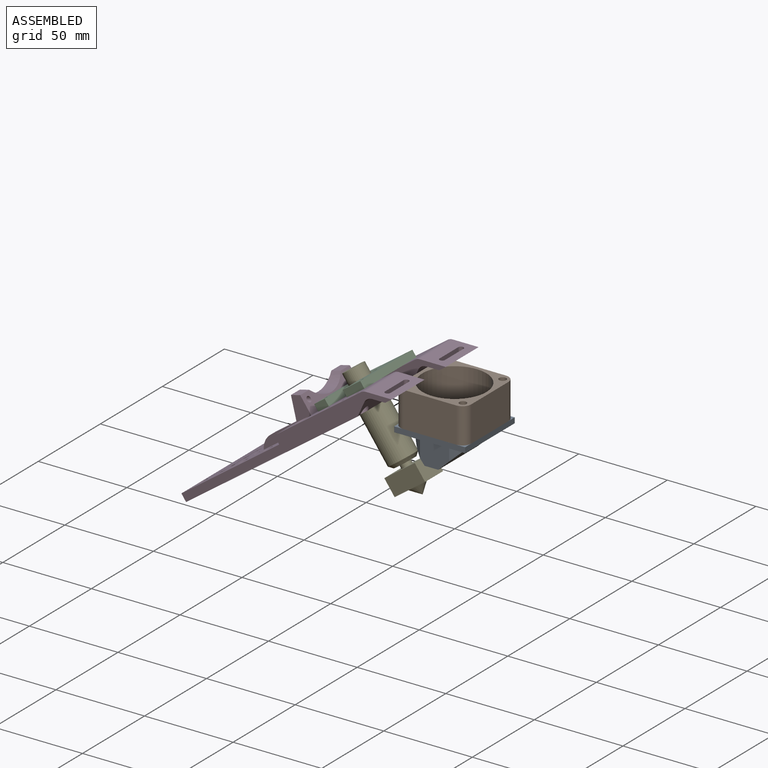
[diagram: assembled view]
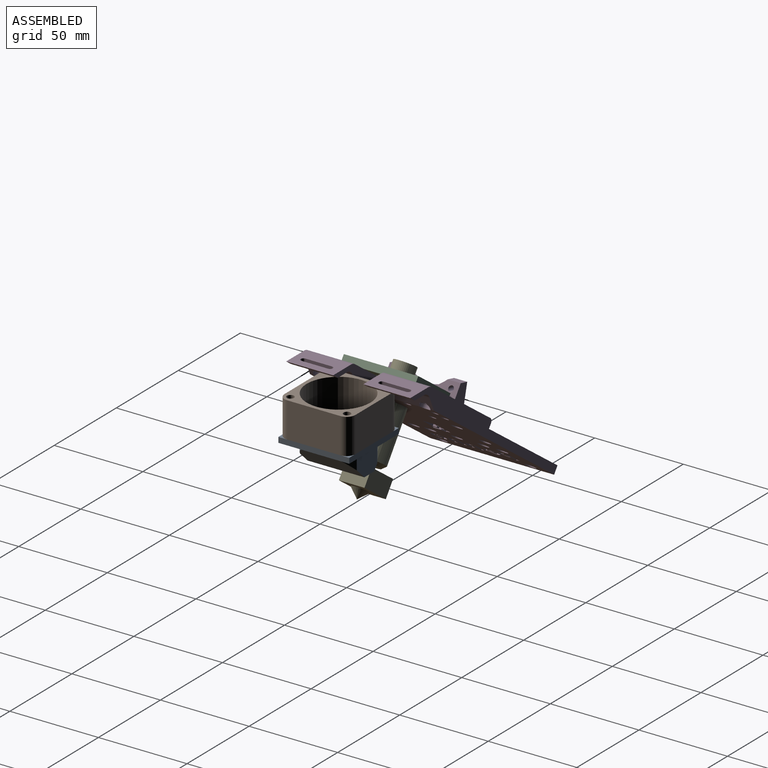
[diagram: assembled view, second angle]
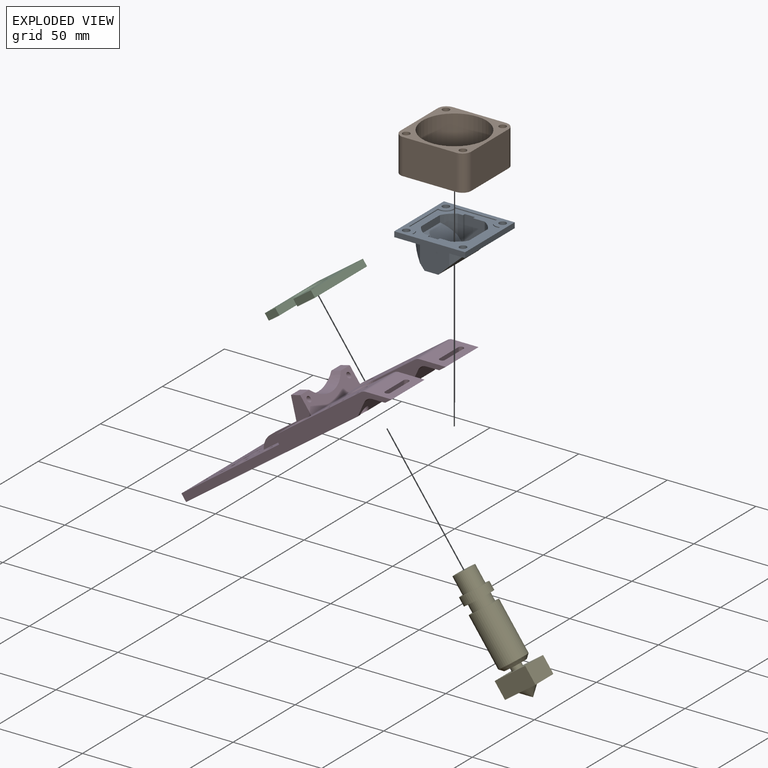
[diagram: exploded view]
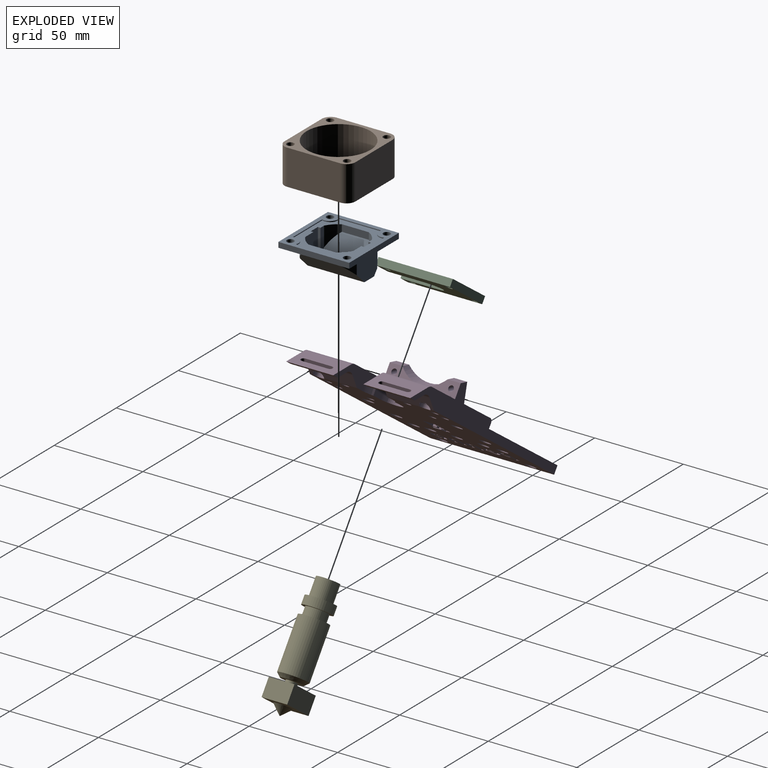
[diagram: exploded view, second angle]
ASSEMBLY  parts=5 mates=9
PART A: 46 faces, bbox 40x40x17.8 mm
  f0: plane 32x7.75mm, normal (0,0,1), area 75.5mm2, adj f6,f7,f8,f9,f42,f43,f44,f45
  f1: plane 14.6x2.94mm, normal (-1,0,0), area 37.6mm2, adj f3,f4,f29,f42
  f2: plane 14.6x2.94mm, normal (1,0,0), area 37.6mm2, adj f3,f4,f28,f42
  f3: plane 27x10.74mm, normal (0,-0.77,-0.63), area 330.6mm2, adj f1,f2,f28,f29,f30,f42
  f4: plane 35x35mm, normal (0,0,-1), area 409.7mm2, adj f1,f2,f25,f26,f28,f29,f30,f31
  f5: plane 40x40mm, normal (0,0,-1), area 450.3mm2, adj f17,f18,f19,f20,f21,f22,f23,f24
  f6: plane 16.49x14.82mm, normal (1,0,0), area 222.1mm2, adj f0,f8,f9,f11,f15,f16
  f7: plane 16.49x14.82mm, normal (-1,0,0), area 222.1mm2, adj f0,f8,f9,f10,f13,f16
  f8: plane 32x13.93mm, normal (0,-0.69,0.72), area 552.1mm2, adj f0,f6,f7,f13,f14,f15
  f9: plane 32x12.56mm, normal (0,0.77,0.63), area 445.3mm2, adj f0,f6,f7,f10,f11,f12
  f10: cylinder r=18mm len=11.7mm, axis (0,0,-1), area 72.3mm2, adj f7,f9,f12,f16
  f11: cylinder r=18mm len=11.7mm, axis (0,0,-1), area 72.3mm2, adj f6,f9,f12,f16
  f12: plane 16.49x2.26mm, normal (0,1,0), area 37.3mm2, adj f9,f10,f11,f16
  f13: cylinder r=18mm len=8.89mm, axis (0,0,-1), area 53.3mm2, adj f7,f8,f14,f16
  f14: plane 16.49x1.45mm, normal (0,-1,0), area 23.9mm2, adj f8,f13,f15,f16
  f15: cylinder r=18mm len=8.89mm, axis (0,0,-1), area 53.3mm2, adj f6,f8,f14,f16
  f16: plane 40x40mm, normal (0,0,1), area 620.8mm2, adj f6,f7,f10,f11,f12,f13,f14,f15
  f17: plane 40x3mm, normal (-1,0,0), area 120mm2, adj f5,f16,f18,f20
  f18: plane 40x3mm, normal (0,-1,0), area 120mm2, adj f5,f16,f17,f19
  f19: plane 40x3mm, normal (1,0,0), area 120mm2, adj f5,f16,f18,f20
  f20: plane 40x3mm, normal (0,1,0), area 120mm2, adj f5,f16,f17,f19
  f21: cylinder r=2mm len=4mm, axis (0,0,1), area 37.7mm2, adj f5,f16
  f22: cylinder r=2mm len=4mm, axis (0,0,1), area 37.7mm2, adj f5,f16
  f23: cylinder r=2mm len=4mm, axis (0,0,1), area 37.7mm2, adj f5,f16
  f24: cylinder r=2mm len=4mm, axis (0,0,1), area 37.7mm2, adj f5,f16
  f25: plane 14.82x6.55mm, normal (-1,0,0), area 76.4mm2, adj f4,f27,f33,f44
  f26: plane 14.82x6.55mm, normal (1,0,0), area 76.4mm2, adj f4,f27,f31,f44
  f27: plane 27x12.43mm, normal (0,0.69,-0.72), area 426.1mm2, adj f25,f26,f31,f32,f33,f44
  f28: cylinder r=15.5mm len=11.03mm, axis (0,0,-1), area 60mm2, adj f2,f3,f4,f30
  f29: cylinder r=15.5mm len=11.03mm, axis (0,0,-1), area 60mm2, adj f1,f3,f4,f30
  f30: plane 15.23x3.86mm, normal (0,-1,0), area 58.9mm2, adj f3,f4,f28,f29
  f31: cylinder r=15.5mm len=8.53mm, axis (0,0,-1), area 45.9mm2, adj f4,f26,f27,f32
  f32: plane 15.23x2.88mm, normal (0,1,0), area 43.9mm2, adj f4,f27,f31,f33
  f33: cylinder r=15.5mm len=8.53mm, axis (0,0,-1), area 45.9mm2, adj f4,f25,f27,f32
  f34: plane 23.51x0.5mm, normal (1,0,0), area 11.8mm2, adj f4,f5,f38,f41
  f35: plane 23.51x0.5mm, normal (0,1,0), area 11.8mm2, adj f4,f5,f40,f41
  f36: plane 23.51x0.5mm, normal (-1,0,0), area 11.8mm2, adj f4,f5,f39,f40
  f37: plane 23.51x0.5mm, normal (0,-1,0), area 11.8mm2, adj f4,f5,f38,f39
  f38: cylinder r=4.5mm len=6mm, axis (0,0,1), area 5.1mm2, adj f4,f5,f34,f37
  f39: cylinder r=4.5mm len=6mm, axis (0,0,1), area 5.1mm2, adj f4,f5,f36,f37
  f40: cylinder r=4.5mm len=6mm, axis (0,0,1), area 5.1mm2, adj f4,f5,f35,f36
  f41: cylinder r=4.5mm len=6mm, axis (0,0,1), area 5.1mm2, adj f4,f5,f34,f35
  f42: plane 30x17.32mm, normal (0,-1,0), area 125.4mm2, adj f0,f1,f2,f3,f4,f43,f45
  f43: plane 17.32x5.75mm, normal (1,0,0), area 99.5mm2, adj f0,f4,f42,f44
  f44: plane 30x17.32mm, normal (0,1,0), area 119.6mm2, adj f0,f4,f25,f26,f27,f43,f45
  f45: plane 17.32x5.75mm, normal (-1,0,0), area 99.5mm2, adj f0,f4,f42,f44
PART B: 15 faces, bbox 40x40x20 mm
  f0: plane 30x20mm, normal (-1,0,0), area 600mm2, adj f4,f5,f11,f14
  f1: plane 30x20mm, normal (0,-1,0), area 600mm2, adj f4,f5,f11,f12
  f2: plane 30x20mm, normal (1,0,0), area 600mm2, adj f4,f5,f12,f13
  f3: plane 30x20mm, normal (0,1,0), area 600mm2, adj f4,f5,f13,f14
  f4: plane 40x40mm, normal (0,0,1), area 510.4mm2, adj f0,f1,f2,f3,f6,f7,f8,f9
  f5: plane 40x40mm, normal (0,0,-1), area 510.4mm2, adj f0,f1,f2,f3,f6,f7,f8,f9
  f6: cylinder r=2mm len=20mm, axis (0,0,1), area 251.3mm2, adj f4,f5
  f7: cylinder r=2mm len=20mm, axis (0,0,1), area 251.3mm2, adj f4,f5
  f8: cylinder r=2mm len=20mm, axis (0,0,1), area 251.3mm2, adj f4,f5
  f9: cylinder r=2mm len=20mm, axis (0,0,1), area 251.3mm2, adj f4,f5
  f10: cylinder r=18mm len=36mm, axis (0,0,1), area 2261.9mm2, adj f4,f5
  f11: cylinder r=5mm len=20mm, axis (0,0,1), area 157.1mm2, adj f0,f1,f4,f5
  f12: cylinder r=5mm len=20mm, axis (0,0,-1), area 157.1mm2, adj f1,f2,f4,f5
  f13: cylinder r=5mm len=20mm, axis (0,0,1), area 157.1mm2, adj f2,f3,f4,f5
  f14: cylinder r=5mm len=20mm, axis (0,0,-1), area 157.1mm2, adj f0,f3,f4,f5
PART C: 16 faces, bbox 42x32x4 mm
  f0: plane 12.21x4mm, normal (-1,0,0), area 48.8mm2, adj f1,f4,f6,f9
  f1: plane 42x32mm, normal (0,0,1), area 868.5mm2, adj f0,f2,f3,f4,f5,f8,f9,f11
  f2: plane 42x4mm, normal (0,1,0), area 168mm2, adj f1,f3,f5,f6
  f3: plane 7.29x4mm, normal (-1,0,0), area 29.2mm2, adj f1,f2,f6,f8
  f4: plane 42x4mm, normal (0,-1,0), area 168mm2, adj f0,f1,f5,f6
  f5: plane 32x4mm, normal (1,0,0), area 128mm2, adj f1,f2,f4,f6
  f6: plane 42x32mm, normal (0,0,-1), area 969.9mm2, adj f0,f2,f3,f4,f5,f7,f8,f9
  f7: cylinder r=6.25mm len=12.5mm, axis (0,0,1), area 20mm2, adj f6,f8,f10,f15
  f8: plane 20.81x4mm, normal (0,-1,0), area 70.7mm2, adj f1,f3,f6,f7,f15
  f9: plane 20.81x4mm, normal (0,1,0), area 70.7mm2, adj f0,f1,f6,f10,f15
  f10: plane 1.01x0.01mm, normal (-1,0,0), area 0mm2, adj f6,f7,f9,f15
  f11: cylinder r=2mm len=4mm, axis (0,0,1), area 50.3mm2, adj f1,f6
  f12: cylinder r=2mm len=4mm, axis (0,0,1), area 50.3mm2, adj f1,f6
  f13: cylinder r=2mm len=4mm, axis (0,0,1), area 50.3mm2, adj f1,f6
  f14: cylinder r=2mm len=4mm, axis (0,0,1), area 50.3mm2, adj f1,f6
  f15: cone r=6.25mm half-angle=45deg, axis (0,0,1), area 143.3mm2, adj f1,f7,f8,f9,f10
PART D: 260 faces, bbox 147.4x74.6x26.5 mm
  f0: plane 119.21x70mm, normal (0,0,-1), area 7285.6mm2, adj f4,f5,f8,f9,f20,f21,f27,f28
  f1: plane 70x70mm, normal (0,0,1), area 4024mm2, adj f4,f5,f25,f26,f31,f32,f33,f34
  f2: cylinder r=2mm len=7.42mm, axis (0,0,1), area 93.2mm2, adj f24,f82
  f3: cylinder r=2mm len=7.42mm, axis (0,0,1), area 93.2mm2, adj f24,f80
  f4: plane 142.87x9.42mm, normal (0,-1,0), area 898.8mm2, adj f0,f1,f7,f19,f24,f37,f45,f63
  f5: plane 130.01x9.43mm, normal (0,1,0), area 863.2mm2, adj f0,f1,f10,f24,f37,f46,f65,f73
  f6: plane 26.51x4.61mm, normal (0,0,-1), area 122.1mm2, adj f8,f10,f62,f66
  f7: plane 26.5x4.61mm, normal (0,0,-1), area 122.1mm2, adj f4,f9,f19,f63
  f8: plane 42.82x9.42mm, normal (0,-1,0), area 223.9mm2, adj f0,f6,f24,f27,f40,f41,f62,f65
  f9: plane 29.56x9.42mm, normal (0,1,0), area 160mm2, adj f0,f7,f19,f24,f38,f63,f64,f75
  f10: plane 12.89x9.08mm, normal (0,1,0), area 35.6mm2, adj f5,f6,f62,f66,f76,f77
  f11: cylinder r=1.5mm len=4.01mm, axis (0.58,0,0.81), area 12.7mm2, adj f12,f14,f62,f66
  f12: plane 15x2.18mm, normal (-0.81,0,0.58), area 40.3mm2, adj f11,f13,f62,f66
  f13: cylinder r=1.5mm len=4.01mm, axis (0.58,0,0.81), area 12.7mm2, adj f12,f14,f62,f66
  f14: plane 15x2.18mm, normal (0.81,0,-0.58), area 40.3mm2, adj f11,f13,f62,f66
  f15: cylinder r=1.5mm len=4.01mm, axis (0.58,0,0.81), area 12.7mm2, adj f16,f18,f19,f63
  f16: plane 15x2.18mm, normal (-0.81,0,0.58), area 40.3mm2, adj f15,f17,f19,f63
  f17: cylinder r=1.5mm len=4.01mm, axis (0.58,0,0.81), area 12.7mm2, adj f16,f18,f19,f63
  f18: plane 15x2.18mm, normal (0.81,0,-0.58), area 40.3mm2, adj f15,f17,f19,f63
  f19: plane 26.5x11.8mm, normal (0.58,0,0.81), area 333.1mm2, adj f4,f7,f9,f15,f16,f17,f18,f75
  f20: cylinder r=3mm len=6mm, axis (0,0,-1), area 83.3mm2, adj f0,f61
  f21: cylinder r=3mm len=6mm, axis (0,0,-1), area 83.3mm2, adj f0,f59
  f22: plane 40x12.5mm, normal (-0.93,0,0.37), area 424.1mm2, adj f23,f24,f52,f53,f54,f55,f56,f57
  f23: plane 12.5x10mm, normal (0,-1,0), area 88.7mm2, adj f22,f24,f51,f57
  f24: plane 79.6x70mm, normal (0,0,1), area 3025.6mm2, adj f2,f3,f4,f5,f8,f9,f22,f23
  f25: plane 30x4.82mm, normal (0,1,0), area 123.7mm2, adj f1,f24,f46,f71,f73
  f26: plane 30x4.82mm, normal (0,-1,0), area 123.7mm2, adj f1,f24,f45,f72,f74
  f27: cylinder r=8.5mm len=6.02mm, axis (0,0,-1), area 30.8mm2, adj f0,f8,f30,f40
  f28: plane 7.24x4.6mm, normal (0,1,0), area 33.3mm2, adj f0,f29,f38,f40
  f29: cylinder r=6mm len=12mm, axis (0,0,-1), area 87.2mm2, adj f0,f28,f30,f40
  f30: plane 7.24x4.6mm, normal (0,-1,0), area 33.3mm2, adj f0,f27,f29,f40
  f31: cylinder r=3mm len=6mm, axis (0,0,-1), area 86.7mm2, adj f0,f1
  f32: cylinder r=3mm len=6mm, axis (0,0,-1), area 86.7mm2, adj f0,f1
  f33: cylinder r=3mm len=6mm, axis (0,0,-1), area 86.7mm2, adj f0,f1
  f34: cylinder r=3mm len=6mm, axis (0,0,-1), area 86.7mm2, adj f0,f1
  f35: cylinder r=3mm len=6mm, axis (0,0,-1), area 86.7mm2, adj f0,f1
  f36: cylinder r=3mm len=6mm, axis (0,0,-1), area 86.7mm2, adj f0,f1
  f37: plane 70x4.6mm, normal (-1,0,0), area 322mm2, adj f0,f1,f4,f5
  f38: cylinder r=8.5mm len=9.42mm, axis (0,0,-1), area 31mm2, adj f0,f9,f24,f28,f39,f40
  f39: plane 13.21x4.82mm, normal (0,1,0), area 63.7mm2, adj f24,f38,f40,f41
  f40: plane 21.82x17mm, normal (0,0,1), area 102.8mm2, adj f8,f27,f28,f29,f30,f38,f39,f41
  f41: cylinder r=8.5mm len=17mm, axis (0,0,1), area 129.2mm2, adj f8,f24,f39,f40
  f42: plane 30x4.82mm, normal (0,1,0), area 132.5mm2, adj f1,f24,f43,f72
  f43: plane 20x4.82mm, normal (-1,0,0), area 96.4mm2, adj f1,f24,f42,f44
  f44: plane 30x4.82mm, normal (0,-1,0), area 132.5mm2, adj f1,f24,f43,f71
  f45: plane 20x2.82mm, normal (-1,0,0), area 56.4mm2, adj f1,f4,f26,f74
  f46: plane 20x2.82mm, normal (-1,0,0), area 56.4mm2, adj f1,f5,f25,f73
  f47: cylinder r=2mm len=9.42mm, axis (0,0,1), area 118.4mm2, adj f0,f24
  f48: cylinder r=2mm len=9.42mm, axis (0,0,1), area 118.4mm2, adj f0,f24
  f49: cylinder r=2mm len=9.42mm, axis (0,0,1), area 118.4mm2, adj f0,f24
  f50: cylinder r=2mm len=9.42mm, axis (0,0,1), area 118.4mm2, adj f0,f24
  f51: plane 44.56x15.06mm, normal (1,0,0), area 296.7mm2, adj f23,f24,f52,f53,f54,f55,f56,f57
  f52: plane 12.5x10mm, normal (0,1,0), area 88.7mm2, adj f22,f24,f51,f56
  f53: cylinder r=1.5mm len=6.84mm, axis (-0.93,0,0.37), area 58.2mm2, adj f22,f51
  f54: cylinder r=1.5mm len=6.84mm, axis (-0.93,0,0.37), area 58.2mm2, adj f22,f51
  f55: cylinder r=17mm len=25.4mm, axis (-0.93,0,0.37), area 154.5mm2, adj f22,f51,f56,f57
  f56: plane 7.38x5mm, normal (0.37,0,0.93), area 39.7mm2, adj f22,f51,f52,f55
  f57: plane 7.22x5mm, normal (0.37,0,0.93), area 38.9mm2, adj f22,f23,f51,f55
  f58: cylinder r=4.75mm len=9.5mm, axis (0,0,1), area 149.2mm2, adj f24,f59
  f59: plane 9.5x9.5mm, normal (0,0,1), area 42.6mm2, adj f21,f58
  f60: cylinder r=4.75mm len=9.5mm, axis (0,0,1), area 149.2mm2, adj f24,f61
  f61: plane 9.5x9.5mm, normal (0,0,1), area 42.6mm2, adj f20,f60
  f62: plane 26.51x11.8mm, normal (0.58,0,0.81), area 333.2mm2, adj f6,f8,f10,f11,f12,f13,f14,f76
  f63: plane 26.5x5.88mm, normal (-0.58,0,-0.81), area 139.7mm2, adj f4,f7,f9,f15,f16,f17,f18,f78
  f64: plane 27.02x8.27mm, normal (0.5,0,-0.87), area 217.4mm2, adj f0,f4,f9,f78,f79,f80
  f65: plane 27.02x8.27mm, normal (0.5,0,-0.87), area 217.4mm2, adj f0,f5,f8,f77,f81,f82
  f66: plane 26.51x5.88mm, normal (-0.58,0,-0.81), area 139.8mm2, adj f6,f8,f10,f11,f12,f13,f14,f77
  f67: cylinder r=2mm len=9.42mm, axis (0,0,1), area 118.4mm2, adj f0,f24
  f68: cylinder r=2mm len=9.42mm, axis (0,0,1), area 118.4mm2, adj f0,f24
  f69: cylinder r=2mm len=9.42mm, axis (0,0,1), area 118.4mm2, adj f0,f24
  f70: cylinder r=2mm len=9.42mm, axis (0,0,1), area 118.4mm2, adj f0,f24
  f71: cylinder r=10mm len=8.55mm, axis (0,1,0), area 51.3mm2, adj f1,f24,f25,f44
  f72: cylinder r=10mm len=8.55mm, axis (0,1,0), area 51.3mm2, adj f1,f24,f26,f42
  f73: cylinder r=2mm len=20mm, axis (0,1,0), area 62.8mm2, adj f5,f24,f25,f46
  f74: cylinder r=2mm len=20mm, axis (0,1,0), area 62.8mm2, adj f4,f24,f26,f45
  f75: cylinder r=5mm len=26.5mm, axis (0,1,0), area 82.6mm2, adj f4,f9,f19,f24
  f76: cylinder r=5mm len=26.51mm, axis (0,1,0), area 82.6mm2, adj f5,f8,f10,f24,f62
  f77: cylinder r=5mm len=26.51mm, axis (0,-1,0), area 152.1mm2, adj f5,f8,f10,f65,f66
  f78: cylinder r=5mm len=26.5mm, axis (0,-1,0), area 152.1mm2, adj f4,f9,f63,f64
  f79: cylinder r=3mm len=6mm, axis (0,0,-1), area 25.6mm2, adj f0,f64,f80
  f80: plane 6x5.9mm, normal (0,0,-1), area 15.6mm2, adj f3,f64,f79
  f81: cylinder r=3mm len=6mm, axis (0,0,-1), area 25.6mm2, adj f0,f65,f82
  f82: plane 6x5.9mm, normal (0,0,-1), area 15.6mm2, adj f2,f65,f81
  f83: cylinder r=3mm len=6mm, axis (0,0,-1), area 37.7mm2, adj f0,f84
  f84: plane 6x6mm, normal (0,0,-1), area 15.7mm2, adj f83,f91
  f85: cylinder r=3mm len=6mm, axis (0,0,-1), area 37.7mm2, adj f0,f86
  f86: plane 6x6mm, normal (0,0,-1), area 15.7mm2, adj f85,f90
  f87: cylinder r=3mm len=6mm, axis (0,0,-1), area 37.7mm2, adj f0,f88
  f88: plane 6x6mm, normal (0,0,-1), area 15.7mm2, adj f87,f89
  f89: cylinder r=2mm len=4mm, axis (0,0,-1), area 32.7mm2, adj f1,f88
  f90: cylinder r=2mm len=4mm, axis (0,0,-1), area 32.7mm2, adj f1,f86
  f91: cylinder r=2mm len=4mm, axis (0,0,-1), area 32.7mm2, adj f1,f84
  f92: plane 4.6x0.88mm, normal (-0.22,0.98,0), area 4.2mm2, adj f0,f1,f93,f96
  f93: plane 4.6x1.67mm, normal (-1,0,0), area 7.7mm2, adj f0,f1,f92,f94
  f94: plane 8.73x4.6mm, normal (0,-1,0), area 40.2mm2, adj f0,f1,f93,f95
  f95: plane 4.6x1.87mm, normal (1,0,0), area 8.6mm2, adj f0,f1,f94,f96
  f96: plane 7.85x4.6mm, normal (0,1,0), area 36.1mm2, adj f0,f1,f92,f95
  f97: extruded ~4.6x0.43mm, area 2mm2, adj f0,f1,f98,f120
  f98: extruded ~4.6x1.11mm, area 5.2mm2, adj f0,f1,f97,f99
  f99: extruded ~4.6x0.77mm, area 4.5mm2, adj f0,f1,f98,f100
  f100: extruded ~4.6x0.9mm, area 4.7mm2, adj f0,f1,f99,f101
  f101: extruded ~4.6x1.12mm, area 5.2mm2, adj f0,f1,f100,f102
  f102: extruded ~4.6x0.82mm, area 3.8mm2, adj f0,f1,f101,f103
  f103: extruded ~4.6x0.94mm, area 4.5mm2, adj f0,f1,f102,f104
  f104: extruded ~4.6x0.81mm, area 4.6mm2, adj f0,f1,f103,f105
  f105: extruded ~4.6x0.94mm, area 4.9mm2, adj f0,f1,f104,f106
  f106: plane 4.6x1.49mm, normal (0,1,0), area 6.8mm2, adj f0,f1,f105,f107
  f107: extruded ~4.6x1.42mm, area 6.9mm2, adj f0,f1,f106,f108
  f108: extruded ~4.6x1.15mm, area 7mm2, adj f0,f1,f107,f109
  f109: extruded ~4.6x1.39mm, area 7.4mm2, adj f0,f1,f108,f110
  f110: extruded ~4.6x1.67mm, area 7.8mm2, adj f0,f1,f109,f111
  f111: extruded ~4.6x1.73mm, area 8.1mm2, adj f0,f1,f110,f112
  f112: extruded ~4.6x1.41mm, area 7.6mm2, adj f0,f1,f111,f113
  f113: extruded ~4.6x1.27mm, area 7.4mm2, adj f0,f1,f112,f114
  f114: extruded ~4.6x1.6mm, area 7.6mm2, adj f0,f1,f113,f115
  f115: extruded ~4.6x1.73mm, area 8.2mm2, adj f0,f1,f114,f116
  f116: extruded ~4.6x1.19mm, area 7.1mm2, adj f0,f1,f115,f117
  f117: plane 4.6x1.04mm, normal (-0.55,0.84,0), area 5.7mm2, adj f0,f1,f116,f118
  f118: extruded ~4.6x0.5mm, area 2.9mm2, adj f0,f1,f117,f119
  f119: extruded ~4.6x0.57mm, area 2.9mm2, adj f0,f1,f118,f120
  f120: extruded ~4.6x0.54mm, area 2.6mm2, adj f0,f1,f97,f119
  f121: extruded ~4.6x1.51mm, area 7.3mm2, adj f0,f1,f122,f133
  f122: plane 4.6x1.45mm, normal (0,-1,0), area 6.7mm2, adj f0,f1,f121,f123
  f123: extruded ~4.6x0.76mm, area 3.7mm2, adj f0,f1,f122,f124
  f124: extruded ~4.6x0.6mm, area 3.7mm2, adj f0,f1,f123,f125
  f125: extruded ~4.6x0.69mm, area 3.7mm2, adj f0,f1,f124,f126
  f126: extruded ~4.6x0.78mm, area 3.6mm2, adj f0,f1,f125,f127
  f127: plane 4.6x3.58mm, normal (-1,0,0), area 16.4mm2, adj f0,f1,f126,f128
  f128: plane 4.6x1.36mm, normal (0,-1,0), area 6.3mm2, adj f0,f1,f127,f129
  f129: plane 5.31x4.6mm, normal (1,0,0), area 24.4mm2, adj f0,f1,f128,f130
  f130: extruded ~4.6x0.74mm, area 3.4mm2, adj f0,f1,f129,f131
  f131: extruded ~4.6x1.58mm, area 7.4mm2, adj f0,f1,f130,f132
  f132: extruded ~4.6x1.35mm, area 7.1mm2, adj f0,f1,f131,f133
  f133: extruded ~4.6x1.15mm, area 6.9mm2, adj f0,f1,f121,f132
  f134: extruded ~4.6x1.44mm, area 6.7mm2, adj f0,f1,f135,f155
  f135: plane 4.6x0.79mm, normal (-1,0,0), area 3.6mm2, adj f0,f1,f134,f136
  f136: plane 4.6x1.41mm, normal (0,-1,0), area 6.5mm2, adj f0,f1,f135,f137
  f137: plane 4.6x0.76mm, normal (1,0,0), area 3.5mm2, adj f0,f1,f136,f138
  f138: extruded ~4.6x1.15mm, area 5.4mm2, adj f0,f1,f137,f139
  f139: extruded ~4.6x0.67mm, area 4.1mm2, adj f0,f1,f138,f140
  f140: extruded ~4.6x0.7mm, area 3.5mm2, adj f0,f1,f139,f141
  f141: extruded ~4.6x0.64mm, area 3mm2, adj f0,f1,f140,f142
  f142: extruded ~4.6x1.17mm, area 5.5mm2, adj f0,f1,f141,f143
  f143: extruded ~4.6x0.74mm, area 4mm2, adj f0,f1,f142,f144
  f144: extruded ~4.6x0.61mm, area 3.3mm2, adj f0,f1,f143,f145
  f145: extruded ~4.6x0.68mm, area 3.2mm2, adj f0,f1,f144,f146
  f146: plane 4.6x1.07mm, normal (-1,0,0), area 4.9mm2, adj f0,f1,f145,f147
  f147: plane 4.6x1.36mm, normal (0,-1,0), area 6.3mm2, adj f0,f1,f146,f148
  f148: plane 4.6x0.74mm, normal (1,0,0), area 3.4mm2, adj f0,f1,f147,f149
  f149: extruded ~4.6x1.64mm, area 7.7mm2, adj f0,f1,f148,f150
  f150: extruded ~4.6x1.27mm, area 6.8mm2, adj f0,f1,f149,f151
  f151: extruded ~4.6x1.18mm, area 6.7mm2, adj f0,f1,f150,f152
  f152: extruded ~4.6x1.57mm, area 7.4mm2, adj f0,f1,f151,f153
  f153: extruded ~4.6x1.48mm, area 7.1mm2, adj f0,f1,f152,f154
  f154: extruded ~4.6x1.12mm, area 6.7mm2, adj f0,f1,f153,f155
  f155: extruded ~4.6x1.28mm, area 6.7mm2, adj f0,f1,f134,f154
  f156: extruded ~4.6x0.61mm, area 3.4mm2, adj f0,f1,f157,f173
  f157: extruded ~4.6x0.96mm, area 5.7mm2, adj f0,f1,f156,f158
  f158: extruded ~4.6x1.18mm, area 5.6mm2, adj f0,f1,f157,f159
  f159: extruded ~4.6x0.95mm, area 4.5mm2, adj f0,f1,f158,f160
  f160: extruded ~4.6x0.91mm, area 4.5mm2, adj f0,f1,f159,f161
  f161: plane 4.6x1.19mm, normal (0,-1,0), area 5.5mm2, adj f0,f1,f160,f162
  f162: extruded ~4.6x0.71mm, area 3.4mm2, adj f0,f1,f161,f163
  f163: extruded ~4.6x0.58mm, area 2.7mm2, adj f0,f1,f162,f164
  f164: extruded ~4.6x0.82mm, area 4mm2, adj f0,f1,f163,f165
  f165: extruded ~4.6x0.58mm, area 3.5mm2, adj f0,f1,f164,f166
  f166: extruded ~4.6x0.85mm, area 4.1mm2, adj f0,f1,f165,f167
  f167: extruded ~4.6x1.01mm, area 4.6mm2, adj f0,f1,f166,f168
  f168: plane 4.75x4.6mm, normal (0,-1,0), area 21.9mm2, adj f0,f1,f167,f169
  f169: plane 4.6x1.89mm, normal (1,0,0), area 8.7mm2, adj f0,f1,f168,f170
  f170: plane 4.91x4.6mm, normal (0,1,0), area 22.6mm2, adj f0,f1,f169,f171
  f171: extruded ~4.6x0.76mm, area 3.5mm2, adj f0,f1,f170,f172
  f172: extruded ~4.6x0.77mm, area 3.6mm2, adj f0,f1,f171,f173
  f173: extruded ~4.6x0.73mm, area 3.5mm2, adj f0,f1,f156,f172
  f174: plane 4.6x0.88mm, normal (-0.22,0.98,0), area 4.2mm2, adj f0,f1,f175,f178
  f175: plane 4.6x1.67mm, normal (-1,0,0), area 7.7mm2, adj f0,f1,f174,f176
  f176: plane 8.73x4.6mm, normal (0,-1,0), area 40.2mm2, adj f0,f1,f175,f177
  f177: plane 4.6x1.87mm, normal (1,0,0), area 8.6mm2, adj f0,f1,f176,f178
  f178: plane 7.85x4.6mm, normal (0,1,0), area 36.1mm2, adj f0,f1,f174,f177
  f179: extruded ~4.6x0.61mm, area 3.4mm2, adj f0,f1,f180,f196
  f180: extruded ~4.6x0.96mm, area 5.7mm2, adj f0,f1,f179,f181
  f181: extruded ~4.6x1.18mm, area 5.6mm2, adj f0,f1,f180,f182
  f182: extruded ~4.6x0.95mm, area 4.5mm2, adj f0,f1,f181,f183
  f183: extruded ~4.6x0.91mm, area 4.5mm2, adj f0,f1,f182,f184
  f184: plane 4.6x1.19mm, normal (0,-1,0), area 5.5mm2, adj f0,f1,f183,f185
  f185: extruded ~4.6x0.71mm, area 3.4mm2, adj f0,f1,f184,f186
  f186: extruded ~4.6x0.58mm, area 2.7mm2, adj f0,f1,f185,f187
  f187: extruded ~4.6x0.82mm, area 4mm2, adj f0,f1,f186,f188
  f188: extruded ~4.6x0.58mm, area 3.5mm2, adj f0,f1,f187,f189
  f189: extruded ~4.6x0.85mm, area 4.1mm2, adj f0,f1,f188,f190
  f190: extruded ~4.6x1.01mm, area 4.6mm2, adj f0,f1,f189,f191
  f191: plane 4.75x4.6mm, normal (0,-1,0), area 21.9mm2, adj f0,f1,f190,f192
  f192: plane 4.6x1.89mm, normal (1,0,0), area 8.7mm2, adj f0,f1,f191,f193
  f193: plane 4.91x4.6mm, normal (0,1,0), area 22.6mm2, adj f0,f1,f192,f194
  f194: extruded ~4.6x0.76mm, area 3.5mm2, adj f0,f1,f193,f195
  f195: extruded ~4.6x0.77mm, area 3.6mm2, adj f0,f1,f194,f196
  f196: extruded ~4.6x0.73mm, area 3.5mm2, adj f0,f1,f179,f195
  f197: extruded ~4.6x1.55mm, area 7.4mm2, adj f0,f1,f198,f212
  f198: plane 4.6x1.46mm, normal (0,-1,0), area 6.7mm2, adj f0,f1,f197,f199
  f199: extruded ~4.6x0.73mm, area 3.7mm2, adj f0,f1,f198,f200
  f200: extruded ~4.6x0.67mm, area 4mm2, adj f0,f1,f199,f201
  f201: extruded ~4.6x0.91mm, area 4.5mm2, adj f0,f1,f200,f202
  f202: extruded ~4.6x1.08mm, area 5mm2, adj f0,f1,f201,f203
  f203: extruded ~4.6x1.94mm, area 9.3mm2, adj f0,f1,f202,f204
  f204: extruded ~4.6x1.26mm, area 7.6mm2, adj f0,f1,f203,f205
  f205: plane 4.6x1.49mm, normal (0,-1,0), area 6.8mm2, adj f0,f1,f204,f206
  f206: extruded ~4.6x1.52mm, area 7.3mm2, adj f0,f1,f205,f207
  f207: extruded ~4.6x1.18mm, area 7mm2, adj f0,f1,f206,f208
  f208: extruded ~4.6x1.36mm, area 7.2mm2, adj f0,f1,f207,f209
  f209: extruded ~4.6x1.68mm, area 7.9mm2, adj f0,f1,f208,f210
  f210: extruded ~4.6x1.69mm, area 7.9mm2, adj f0,f1,f209,f211
  f211: extruded ~4.6x1.39mm, area 7.3mm2, adj f0,f1,f210,f212
  f212: extruded ~4.6x1.17mm, area 7mm2, adj f0,f1,f197,f211
  f213: extruded ~4.6x1.67mm, area 7.8mm2, adj f0,f1,f214,f228
  f214: extruded ~4.6x1.67mm, area 7.8mm2, adj f0,f1,f213,f215
  f215: extruded ~4.6x1.38mm, area 7.2mm2, adj f0,f1,f214,f216
  f216: extruded ~4.6x1.16mm, area 7mm2, adj f0,f1,f215,f217
  f217: extruded ~4.6x1.53mm, area 7.4mm2, adj f0,f1,f216,f218
  f218: plane 4.6x1.49mm, normal (0,1,0), area 6.8mm2, adj f0,f1,f217,f219
  f219: extruded ~4.6x0.72mm, area 3.7mm2, adj f0,f1,f218,f220
  f220: extruded ~4.6x0.67mm, area 4mm2, adj f0,f1,f219,f221
  f221: extruded ~4.6x0.91mm, area 4.5mm2, adj f0,f1,f220,f222
  f222: extruded ~4.6x1.08mm, area 5mm2, adj f0,f1,f221,f223
  f223: extruded ~4.6x1.94mm, area 9.3mm2, adj f0,f1,f222,f224
  f224: extruded ~4.6x1.24mm, area 7.5mm2, adj f0,f1,f223,f225
  f225: plane 4.6x1.44mm, normal (0,1,0), area 6.6mm2, adj f0,f1,f224,f226
  f226: extruded ~4.6x1.5mm, area 7.2mm2, adj f0,f1,f225,f227
  f227: extruded ~4.6x1.17mm, area 6.9mm2, adj f0,f1,f226,f228
  f228: extruded ~4.6x1.36mm, area 7.2mm2, adj f0,f1,f213,f227
  f229: plane 4.6x1.86mm, normal (-1,0,0), area 8.5mm2, adj f0,f1,f230,f232
  f230: plane 11.41x4.6mm, normal (0,-1,0), area 52.5mm2, adj f0,f1,f229,f231
  f231: plane 4.6x1.86mm, normal (1,0,0), area 8.5mm2, adj f0,f1,f230,f232
  f232: plane 11.41x4.6mm, normal (0,1,0), area 52.5mm2, adj f0,f1,f229,f231
  f233: plane 4.6x2.23mm, normal (0,1,0), area 10.2mm2, adj f0,f1,f234,f259
  f234: plane 4.6x2.22mm, normal (1,0,0), area 10.2mm2, adj f0,f1,f233,f235
  f235: plane 10.27x4.6mm, normal (0,1,0), area 47.3mm2, adj f0,f1,f234,f236
  f236: plane 7.12x4.6mm, normal (-1,0,0), area 32.8mm2, adj f0,f1,f235,f237
  f237: plane 4.6x2.01mm, normal (0,-1,0), area 9.2mm2, adj f0,f1,f236,f238
  f238: plane 4.6x1.08mm, normal (1,0,0), area 5mm2, adj f0,f1,f237,f239
  f239: plane 4.6x0.84mm, normal (0,-1,0), area 3.9mm2, adj f0,f1,f238,f240
  f240: plane 4.6x1.08mm, normal (-1,0,0), area 5mm2, adj f0,f1,f239,f241
  f241: plane 4.6x1.28mm, normal (0,-1,0), area 5.9mm2, adj f0,f1,f240,f242
  f242: plane 4.6x1.08mm, normal (1,0,0), area 5mm2, adj f0,f1,f241,f243
  f243: plane 4.6x0.95mm, normal (0,-1,0), area 4.3mm2, adj f0,f1,f242,f244
  f244: plane 4.6x1.08mm, normal (-1,0,0), area 5mm2, adj f0,f1,f243,f245
  f245: plane 4.6x1.15mm, normal (0,-1,0), area 5.3mm2, adj f0,f1,f244,f246
  f246: plane 4.6x1.08mm, normal (1,0,0), area 5mm2, adj f0,f1,f245,f247
  f247: plane 4.6x0.9mm, normal (0,-1,0), area 4.1mm2, adj f0,f1,f246,f248
  f248: plane 4.6x1.08mm, normal (-1,0,0), area 5mm2, adj f0,f1,f247,f249
  f249: plane 4.6x3.15mm, normal (0,-1,0), area 14.5mm2, adj f0,f1,f248,f250
  f250: plane 4.6x2.01mm, normal (1,0,0), area 9.2mm2, adj f0,f1,f249,f251
  f251: plane 4.6x2.23mm, normal (0,-1,0), area 10.2mm2, adj f0,f1,f250,f252
  f252: plane 4.6x2.01mm, normal (-1,0,0), area 9.2mm2, adj f0,f1,f251,f253
  f253: plane 4.6x2.9mm, normal (0,-1,0), area 13.3mm2, adj f0,f1,f252,f254
  f254: plane 4.6x2.02mm, normal (1,0,0), area 9.3mm2, adj f0,f1,f253,f255
  f255: plane 4.6x2.2mm, normal (0.63,-0.77,0), area 13.1mm2, adj f0,f1,f254,f256
  f256: plane 4.6x2.2mm, normal (0.56,0.83,0), area 12.3mm2, adj f0,f1,f255,f257
  f257: plane 4.6x4.48mm, normal (1,0,0), area 20.6mm2, adj f0,f1,f256,f258
  f258: plane 4.6x2.9mm, normal (0,1,0), area 13.3mm2, adj f0,f1,f257,f259
  f259: plane 4.9x4.6mm, normal (-1,0,0), area 22.6mm2, adj f0,f1,f233,f258
PART E: 18 faces, bbox 21.2x16.3x67 mm
  f0: cylinder r=8mm len=16mm, axis (0,0,-1), area 241.3mm2, adj f1,f2
  f1: plane 16x16mm, normal (0,0,1), area 88mm2, adj f0,f3
  f2: plane 16x16mm, normal (0,0,-1), area 88mm2, adj f0,f16
  f3: cylinder r=6mm len=12mm, axis (0,0,-1), area 173.4mm2, adj f1,f6
  f4: cylinder r=8mm len=28.6mm, axis (0,0,-1), area 1437.6mm2, adj f6,f7
  f5: plane 12x12mm, normal (0,0,1), area 84.8mm2, adj f7,f8
  f6: plane 16x16mm, normal (0,0,-1), area 88mm2, adj f3,f4
  f7: cone r=6mm half-angle=45deg, axis (0,0,-1), area 124.4mm2, adj f4,f5
  f8: cylinder r=3mm len=6mm, axis (0,0,-1), area 37.7mm2, adj f5,f14
  f9: plane 21.17x10mm, normal (0,1,0), area 211.7mm2, adj f10,f12,f13,f14
  f10: plane 14.49x10mm, normal (-1,0,0), area 144.9mm2, adj f9,f11,f13,f14
  f11: plane 21.17x10mm, normal (0,-1,0), area 211.7mm2, adj f10,f12,f13,f14
  f12: plane 14.49x10mm, normal (1,0,0), area 144.9mm2, adj f9,f11,f13,f14
  f13: plane 21.17x14.49mm, normal (0,0,1), area 228.1mm2, adj f9,f10,f11,f12,f15
  f14: plane 21.17x14.49mm, normal (0,0,-1), area 278.4mm2, adj f8,f9,f10,f11,f12
  f15: cone r=5mm half-angle=45deg, axis (0,0,-1), area 111.1mm2, adj f13
  f16: cylinder r=6mm len=12mm, axis (0,0,1), area 377mm2, adj f2,f17
  f17: plane 12x12mm, normal (0,0,-1), area 113.1mm2, adj f16
PLACE A rot(axis=(0.71,-0.71,0),180deg) t=(166,-17.24,96.12)mm
PLACE B rot(axis=(-0.5,0,0.86),0deg) t=(126,-57.24,96.12)mm
PLACE C rot(axis=(-0.29,-0.29,0.91),95.4deg) t=(98.86,-41.94,103.63)mm
PLACE D rot(axis=(0,-1,0),35.7deg) t=(62.39,-44.74,65.83)mm
PLACE E rot(axis=(0.95,0,0.31),180deg) t=(95.84,-38.74,101.43)mm
MATE cylindrical D.f50 <-> C.f12  axis (-0.58,0,0.81) through (87.71,-21.24,95.61)mm
MATE planar D.f63 <-> B.f11  axis (0,0,-1) through (128.5,-53.24,116.12)mm
MATE planar E.f0 <-> D.f40  axis (0.58,0,-0.81) through (98.64,-38.74,97.53)mm
MATE cylindrical A.f24 <-> B.f7  axis (0,0,-1) through (162,-21.24,93.12)mm
MATE planar A.f5 <-> B.f11  axis (0,0,1) through (146,-57.24,96.12)mm
MATE cylindrical D.f17 <-> B.f9  axis (0,0,1) through (130,-53.24,118.81)mm
MATE cylindrical E.f3 <-> D.f29  axis (-0.58,0,0.81) through (99.98,-38.74,95.66)mm
MATE cylindrical A.f21 <-> B.f6  axis (0,0,1) through (130,-21.24,96.12)mm
MATE planar C.f6 <-> D.f24  axis (0.58,0,-0.81) through (98.95,-36.6,103.69)mm
